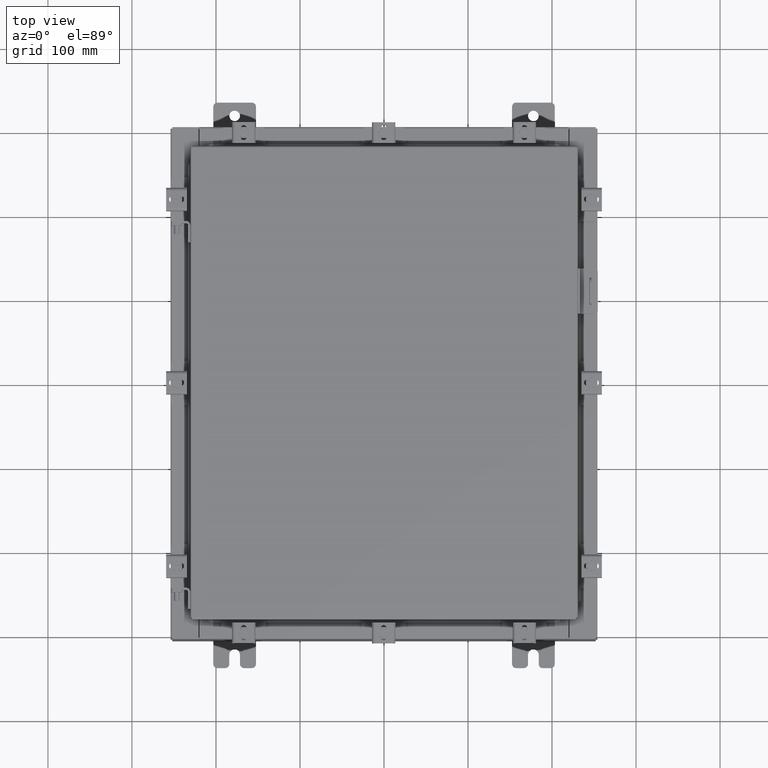
[diagram: clean part render]
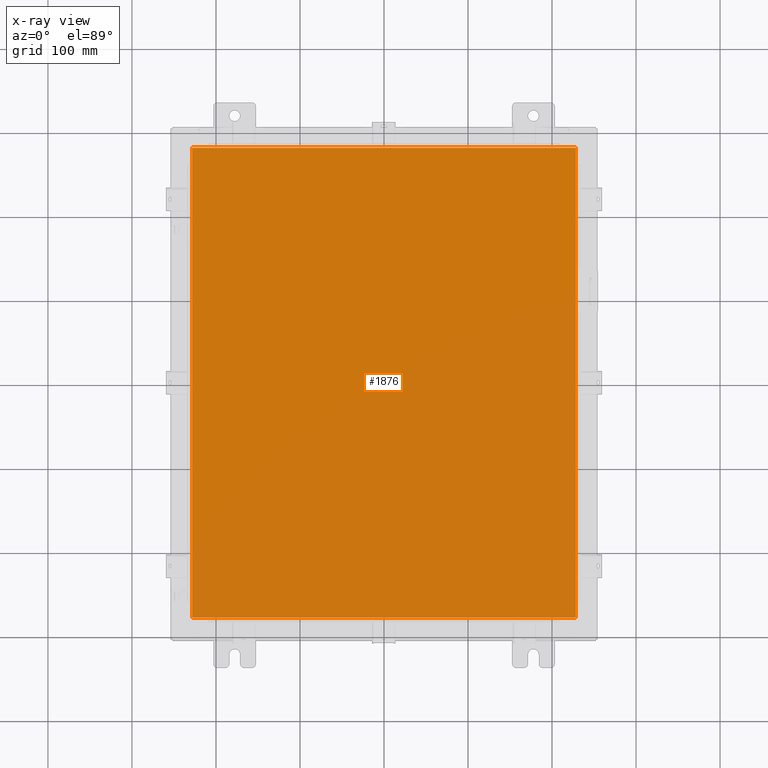
[diagram: x-ray — body ghosted, one internal face saturated and labeled with its STEP entity id]
A machine part, top view, then the same camera in x-ray: the body is ghosted and one INTERNAL B-rep face — a face not visible from any outside direction — is saturated and labeled: STEP entity #1876.
In plain terms, the highlighted planar face has unit normal (0, 0, -1).
Its self-contained STEP definition (entity closure, byte-faithful):
#53 = EDGE_CURVE ( 'NONE', #4263, #9523, #11450, .T. ) ;
#128 = DIRECTION ( 'NONE',  ( -1.000000000000000000, 0.0000000000000000000, -0.0000000000000000000 ) ) ;
#163 = LINE ( 'NONE', #8026, #4848 ) ;
#288 = LINE ( 'NONE', #1619, #9068 ) ;
#334 = DIRECTION ( 'NONE',  ( -1.000000000000000000, -0.0000000000000000000, -0.0000000000000000000 ) ) ;
#1018 = CARTESIAN_POINT ( 'NONE',  ( 8.990299999999999500, 11.00630000000000000, -0.07470000000000019700 ) ) ;
#1619 = CARTESIAN_POINT ( 'NONE',  ( -8.990299999999999500, 11.00630000000000100, -0.07470000000000019700 ) ) ;
#1876 = ADVANCED_FACE ( 'NONE', ( #20580 ), #3615, .T. ) ;
#1951 = CARTESIAN_POINT ( 'NONE',  ( 0.0000000000000000000, 0.0000000000000000000, -0.07470000000000000300 ) ) ;
#3454 = CARTESIAN_POINT ( 'NONE',  ( -8.990299999999999500, 11.00630000000000000, -0.07470000000000000300 ) ) ;
#3615 = PLANE ( 'NONE',  #9472 ) ;
#4263 = VERTEX_POINT ( 'NONE', #19732 ) ;
#4848 = VECTOR ( 'NONE', #11484, 39.37007874015748100 ) ;
#5900 = ORIENTED_EDGE ( 'NONE', *, *, #15521, .F. ) ;
#6571 = DIRECTION ( 'NONE',  ( 0.0000000000000000000, 1.000000000000000000, 0.0000000000000000000 ) ) ;
#6851 = VECTOR ( 'NONE', #334, 39.37007874015748100 ) ;
#7236 = EDGE_CURVE ( 'NONE', #9523, #8384, #288, .T. ) ;
#7581 = VECTOR ( 'NONE', #6571, 39.37007874015748100 ) ;
#8026 = CARTESIAN_POINT ( 'NONE',  ( -8.990299999999999500, -11.00630000000000100, -0.07470000000000019700 ) ) ;
#8384 = VERTEX_POINT ( 'NONE', #20660 ) ;
#9068 = VECTOR ( 'NONE', #11442, 39.37007874015748100 ) ;
#9472 = AXIS2_PLACEMENT_3D ( 'NONE', #1951, #20995, #128 ) ;
#9523 = VERTEX_POINT ( 'NONE', #3454 ) ;
#11442 = DIRECTION ( 'NONE',  ( 0.0000000000000000000, -1.000000000000000000, 0.0000000000000000000 ) ) ;
#11450 = LINE ( 'NONE', #1018, #6851 ) ;
#11484 = DIRECTION ( 'NONE',  ( 1.000000000000000000, -0.0000000000000000000, -0.0000000000000000000 ) ) ;
#11873 = ORIENTED_EDGE ( 'NONE', *, *, #20609, .F. ) ;
#13604 = ORIENTED_EDGE ( 'NONE', *, *, #7236, .F. ) ;
#15195 = CARTESIAN_POINT ( 'NONE',  ( 8.990299999999999500, -11.00630000000000000, -0.07470000000000073800 ) ) ;
#15521 = EDGE_CURVE ( 'NONE', #20552, #4263, #21986, .T. ) ;
#16445 = CARTESIAN_POINT ( 'NONE',  ( 8.990299999999999500, -11.00630000000000000, -0.07470000000000000300 ) ) ;
#18073 = EDGE_LOOP ( 'NONE', ( #5900, #11873, #13604, #21206 ) ) ;
#19732 = CARTESIAN_POINT ( 'NONE',  ( 8.990299999999997700, 11.00630000000000000, -0.07470000000000000300 ) ) ;
#20552 = VERTEX_POINT ( 'NONE', #16445 ) ;
#20580 = FACE_OUTER_BOUND ( 'NONE', #18073, .T. ) ;
#20609 = EDGE_CURVE ( 'NONE', #8384, #20552, #163, .T. ) ;
#20660 = CARTESIAN_POINT ( 'NONE',  ( -8.990299999999997700, -11.00630000000000100, -0.07470000000000000300 ) ) ;
#20995 = DIRECTION ( 'NONE',  ( 0.0000000000000000000, 0.0000000000000000000, -1.000000000000000000 ) ) ;
#21206 = ORIENTED_EDGE ( 'NONE', *, *, #53, .F. ) ;
#21986 = LINE ( 'NONE', #15195, #7581 ) ;